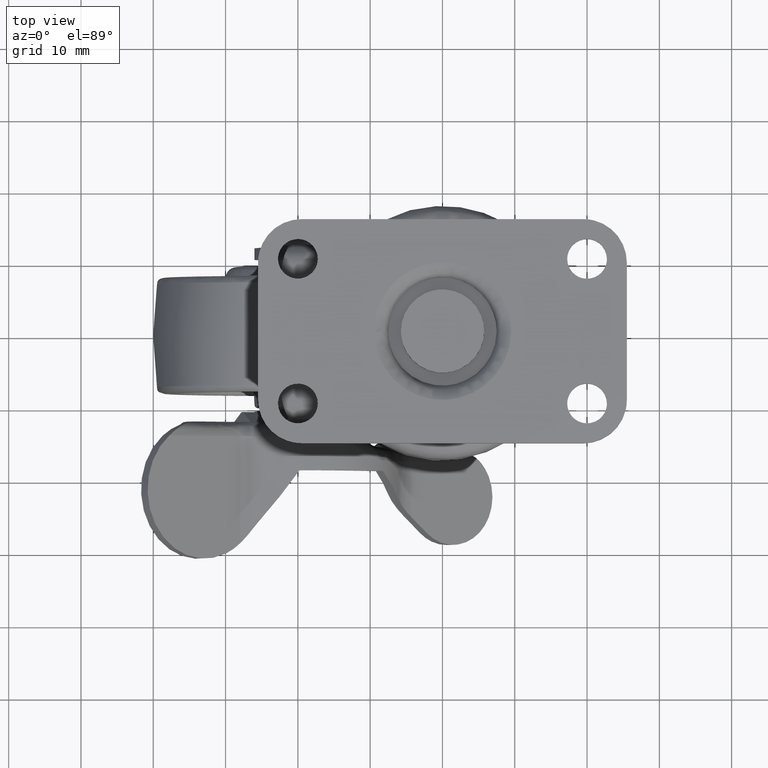
[diagram: clean part render]
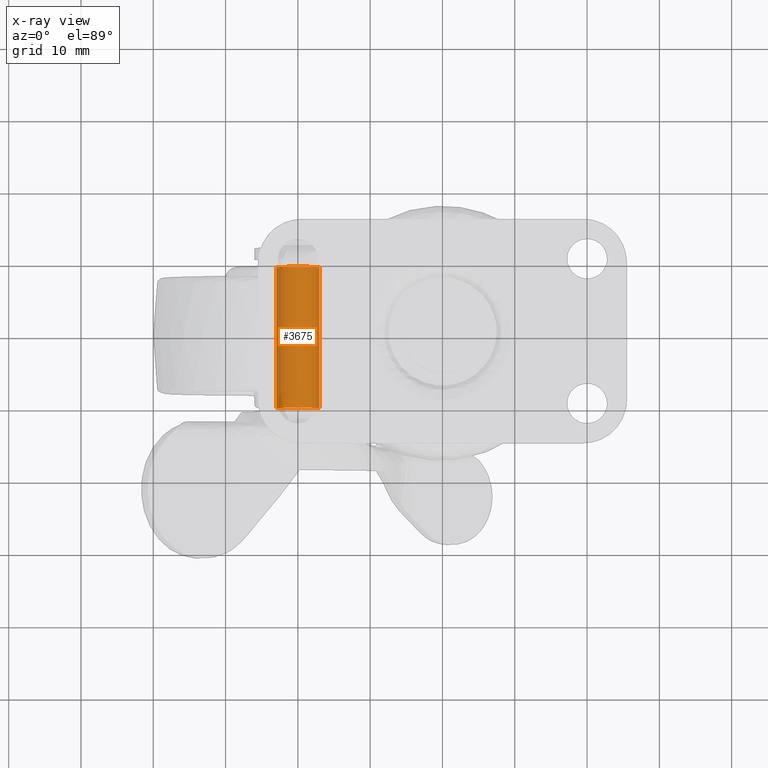
[diagram: x-ray — body ghosted, one internal face saturated and labeled with its STEP entity id]
A machine part, top view, then the same camera in x-ray: the body is ghosted and one INTERNAL B-rep face — a face not visible from any outside direction — is saturated and labeled: STEP entity #3675.
In plain terms, the highlighted face is a freeform B-spline surface patch.
Its self-contained STEP definition (entity closure, byte-faithful):
#3573=CARTESIAN_POINT('',(2.979028579091000,9.987500000000004,-0.354102703970274));
#3574=CARTESIAN_POINT('',(2.989162846345817,9.987500000000003,-0.268844185913932));
#3575=CARTESIAN_POINT('',(2.994404395265600,9.987500000000003,-0.183145618604570));
#3576=CARTESIAN_POINT('',(3.177550013870171,9.987500000000003,2.811258776661029));
#3577=CARTESIAN_POINT('',(0.183145618604571,9.987500000000003,2.994404395265601));
#3578=CARTESIAN_POINT('',(-2.811258776661029,9.987500000000003,3.177550013870172));
#3579=CARTESIAN_POINT('',(-2.994404395265600,9.987500000000003,0.183145618604572));
#3580=CARTESIAN_POINT('',(2.979028579091000,-10.499687500000009,-0.354102703970274));
#3581=CARTESIAN_POINT('',(2.989162846345817,-10.499687500000006,-0.268844185913932));
#3582=CARTESIAN_POINT('',(2.994404395265600,-10.499687500000000,-0.183145618604570));
#3583=CARTESIAN_POINT('',(3.177550013870171,-10.499687500000000,2.811258776661029));
#3584=CARTESIAN_POINT('',(0.183145618604571,-10.499687500000000,2.994404395265601));
#3585=CARTESIAN_POINT('',(-2.811258776661029,-10.499687500000000,3.177550013870172));
#3586=CARTESIAN_POINT('',(-2.994404395265600,-10.499687500000000,0.183145618604572));
#3594=(BOUNDED_SURFACE()B_SPLINE_SURFACE(2,1,((#3573,#3580),(#3574,#3581),(#3575,#3582),(#3576,#3583),(#3577,#3584),(#3578,#3585),(#3579,#3586)),.UNSPECIFIED.,.F.,.F.,.U.)B_SPLINE_SURFACE_WITH_KNOTS((3,2,2,3),(2,2),(0.0,0.198822509939086,5.169385258416225,10.139948006893370),(0.0,20.487187500000012),.UNSPECIFIED.)GEOMETRIC_REPRESENTATION_ITEM()RATIONAL_B_SPLINE_SURFACE(((0.977505800795127,0.977505800795127),(0.988284271247462,0.988284271247462),(1.0,1.0),(0.707106781186548,0.707106781186548),(1.0,1.0),(0.707106781186548,0.707106781186548),(1.0,1.0)))REPRESENTATION_ITEM('')SURFACE());
#3595=CARTESIAN_POINT('',(2.979028579073492,-10.0,-0.354102704117560));
#3596=VERTEX_POINT('',#3595);
#3597=CARTESIAN_POINT('',(0.0,-10.0,3.000000000000001));
#3598=VERTEX_POINT('',#3597);
#3599=CARTESIAN_POINT('',(2.979028579073491,-10.0,-0.354102704117560));
#3600=CARTESIAN_POINT('',(3.000000000000000,-10.0,-0.177672359104572));
#3601=CARTESIAN_POINT('',(3.0,-10.0,1.181745E-015));
#3602=CARTESIAN_POINT('',(3.0,-10.000000000000002,3.000000000000002));
#3603=CARTESIAN_POINT('',(0.0,-10.0,3.000000000000001));
#3611=(BOUNDED_CURVE()B_SPLINE_CURVE(2,(#3599,#3600,#3601,#3602,#3603),.UNSPECIFIED.,.F.,.U.)B_SPLINE_CURVE_WITH_KNOTS((3,2,3),(0.229562473498933,0.250000000000000,0.500000000000000),.UNSPECIFIED.)CURVE()GEOMETRIC_REPRESENTATION_ITEM()RATIONAL_B_SPLINE_CURVE((0.956026754155131,0.976055948314069,1.0,0.707106781186548,1.0))REPRESENTATION_ITEM(''));
#3612=EDGE_CURVE('',#3596,#3598,#3611,.T.);
#3613=ORIENTED_EDGE('',*,*,#3612,.T.);
#3614=CARTESIAN_POINT('',(-2.994404395255500,-10.0,0.183145618769711));
#3615=VERTEX_POINT('',#3614);
#3616=CARTESIAN_POINT('',(0.0,-10.0,3.000000000000001));
#3617=CARTESIAN_POINT('',(-2.822118200405211,-10.0,3.000000000000002));
#3618=CARTESIAN_POINT('',(-2.994404395255500,-10.000000000000002,0.183145618769711));
#3626=(BOUNDED_CURVE()B_SPLINE_CURVE(2,(#3616,#3617,#3618),.UNSPECIFIED.,.F.,.U.)B_SPLINE_CURVE_WITH_KNOTS((3,3),(0.500000000000000,0.739332962222936),.UNSPECIFIED.)CURVE()GEOMETRIC_REPRESENTATION_ITEM()RATIONAL_B_SPLINE_CURVE((1.0,0.719603993305464,0.976072041632411))REPRESENTATION_ITEM(''));
#3627=EDGE_CURVE('',#3598,#3615,#3626,.T.);
#3628=ORIENTED_EDGE('',*,*,#3627,.T.);
#3629=CARTESIAN_POINT('',(-2.994404395255500,9.500000000000000,0.183145618769710));
#3630=VERTEX_POINT('',#3629);
#3631=CARTESIAN_POINT('',(-2.994404395255500,9.500000000000000,0.183145618769710));
#3632=CARTESIAN_POINT('',(-2.994404395255500,-10.0,0.183145618769711));
#3633=QUASI_UNIFORM_CURVE('',1,(#3631,#3632),.UNSPECIFIED.,.F.,.U.);
#3634=EDGE_CURVE('',#3630,#3615,#3633,.T.);
#3635=ORIENTED_EDGE('',*,*,#3634,.F.);
#3636=CARTESIAN_POINT('',(0.0,9.500000000000000,3.000000000000001));
#3637=VERTEX_POINT('',#3636);
#3638=CARTESIAN_POINT('',(0.0,9.500000000000000,3.000000000000001));
#3639=CARTESIAN_POINT('',(-2.822118200405249,9.500000000000000,3.000000000000002));
#3640=CARTESIAN_POINT('',(-2.994404395255500,9.500000000000000,0.183145618769710));
#3648=(BOUNDED_CURVE()B_SPLINE_CURVE(2,(#3638,#3639,#3640),.UNSPECIFIED.,.F.,.U.)B_SPLINE_CURVE_WITH_KNOTS((3,3),(0.500000000000000,0.739332962222938),.UNSPECIFIED.)CURVE()GEOMETRIC_REPRESENTATION_ITEM()RATIONAL_B_SPLINE_CURVE((1.0,0.719603993305461,0.976072041632416))REPRESENTATION_ITEM(''));
#3649=EDGE_CURVE('',#3637,#3630,#3648,.T.);
#3650=ORIENTED_EDGE('',*,*,#3649,.F.);
#3651=CARTESIAN_POINT('',(2.979028579073492,9.500000000000000,-0.354102704117560));
#3652=VERTEX_POINT('',#3651);
#3653=CARTESIAN_POINT('',(2.979028579073492,9.499999999999998,-0.354102704117560));
#3654=CARTESIAN_POINT('',(3.000000000000000,9.500000000000000,-0.177672359104572));
#3655=CARTESIAN_POINT('',(3.0,9.500000000000000,1.181745E-015));
#3656=CARTESIAN_POINT('',(3.0,9.500000000000000,3.000000000000002));
#3657=CARTESIAN_POINT('',(0.0,9.500000000000000,3.000000000000001));
#3665=(BOUNDED_CURVE()B_SPLINE_CURVE(2,(#3653,#3654,#3655,#3656,#3657),.UNSPECIFIED.,.F.,.U.)B_SPLINE_CURVE_WITH_KNOTS((3,2,3),(0.229562473498933,0.250000000000000,0.500000000000000),.UNSPECIFIED.)CURVE()GEOMETRIC_REPRESENTATION_ITEM()RATIONAL_B_SPLINE_CURVE((0.956026754155131,0.976055948314069,1.0,0.707106781186548,1.0))REPRESENTATION_ITEM(''));
#3666=EDGE_CURVE('',#3652,#3637,#3665,.T.);
#3667=ORIENTED_EDGE('',*,*,#3666,.F.);
#3668=CARTESIAN_POINT('',(2.979028579073492,9.500000000000000,-0.354102704117560));
#3669=CARTESIAN_POINT('',(2.979028579073492,-10.0,-0.354102704117560));
#3670=QUASI_UNIFORM_CURVE('',1,(#3668,#3669),.UNSPECIFIED.,.F.,.U.);
#3671=EDGE_CURVE('',#3652,#3596,#3670,.T.);
#3672=ORIENTED_EDGE('',*,*,#3671,.T.);
#3673=EDGE_LOOP('',(#3613,#3628,#3635,#3650,#3667,#3672));
#3674=FACE_OUTER_BOUND('',#3673,.T.);
#3675=ADVANCED_FACE('',(#3674),#3594,.F.);